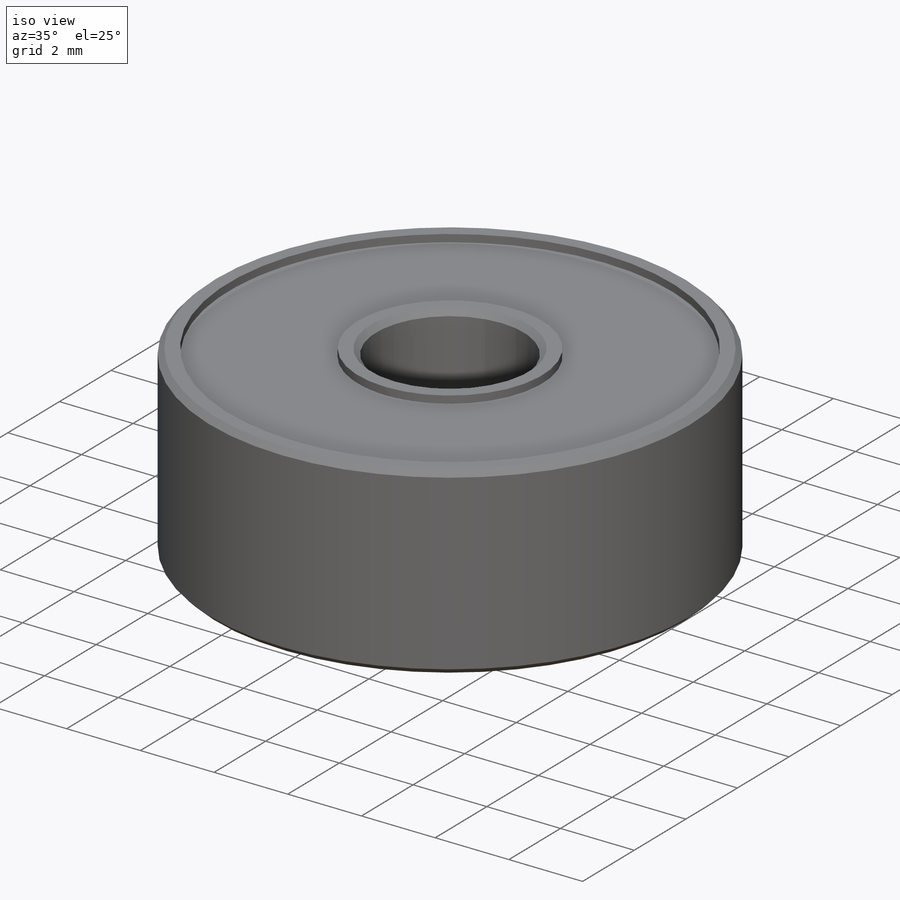
[diagram: iso view]
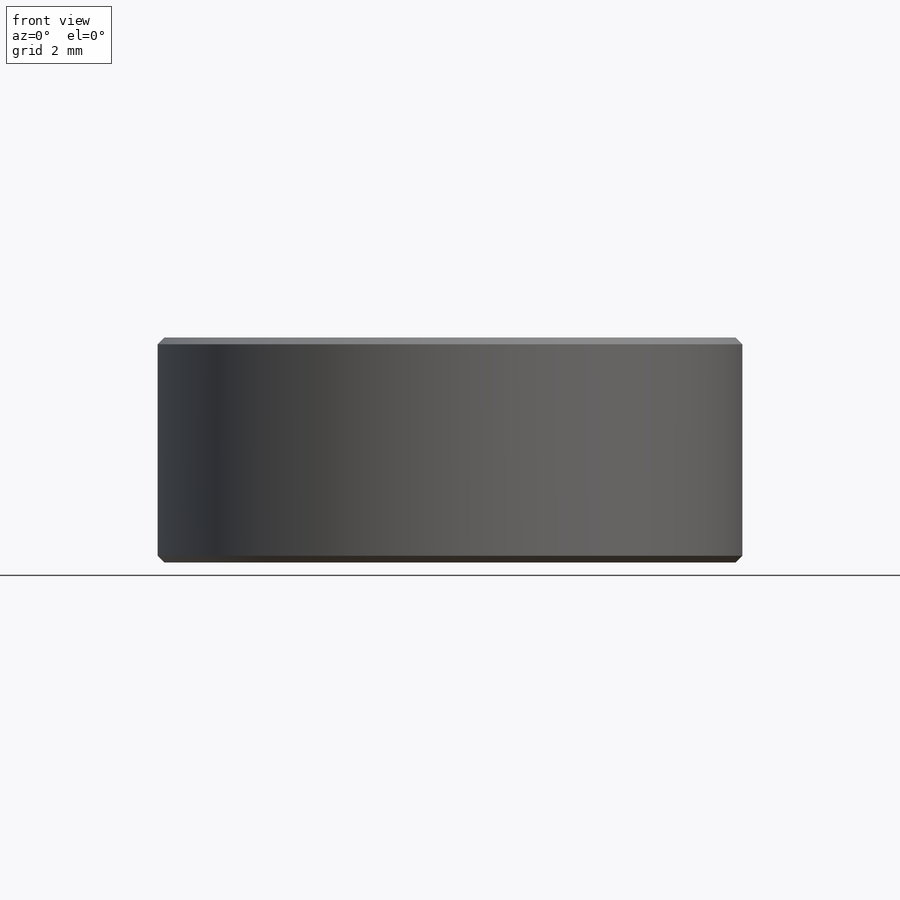
[diagram: front view]
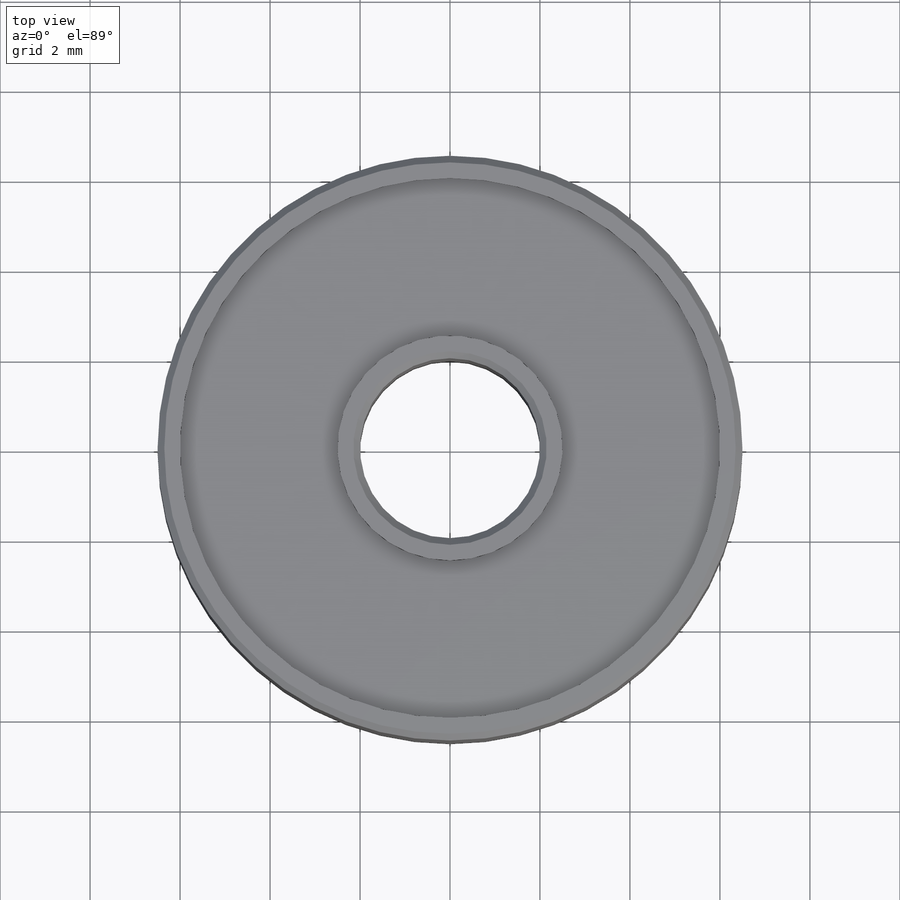
[diagram: top view]
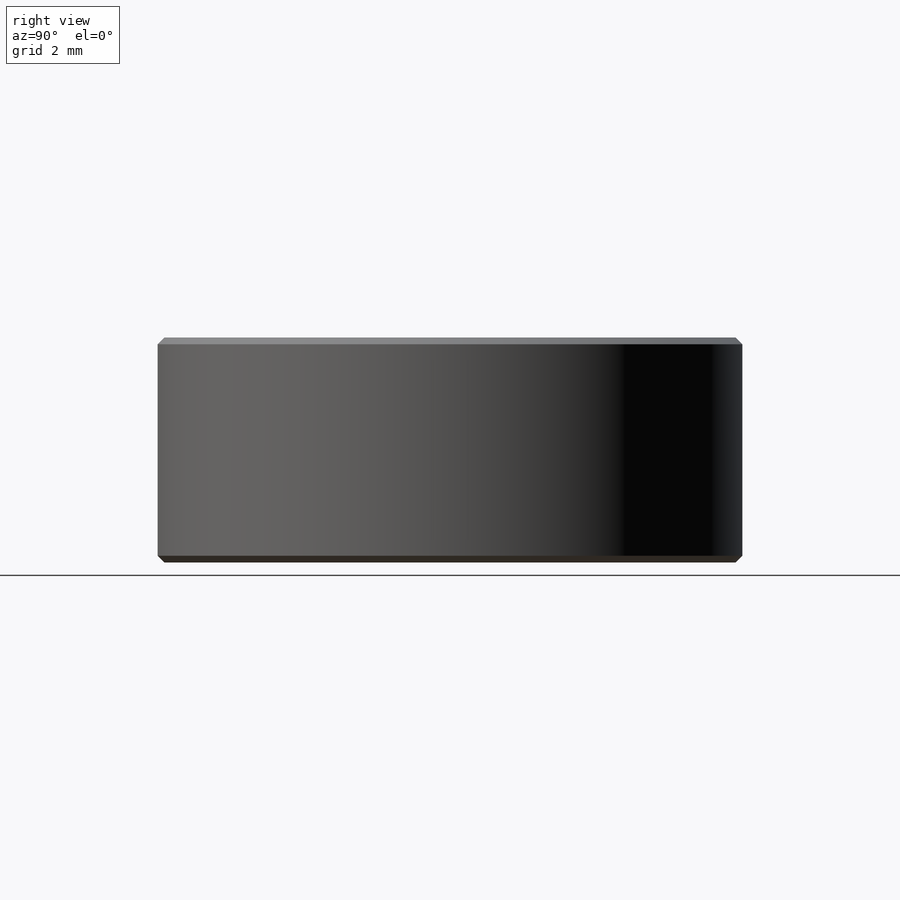
[diagram: right view]
SOLIDWORKS PART (.sldprt)
format: sldprt  version: not decoded by parser v0  size: 256,512 bytes
history: native  units: mm
features: sketch x5, plane x3, extrude x3, cut_extrude x2, material x1, chamfer x1 (+9 scaffold rows collapsed)
feature tree (24):
  scaffold x9  (default folders/planes/origin — collapsed)
  material  "Material <sin especificar>"
  plane  "Alzado"
  plane  "Planta"
  plane  "Vista lateral"
  sketch  "Croquis1"  dims[c1.D1=13.0mm c1.D2=~6.521491mm c1.D3=4.0mm c1.D4=5.0mm c2.D2=0.6mm]
  extrude  "Saliente-Extruir1"  Depth=5mm
  sketch  "Croquis2"  dims[D1=5.0mm D2=12.0mm D3=13.0mm]
  cut_extrude  "Cortar-Extruir1"  Depth=0.7mm
  sketch  "Croquis3"  dims[D1=13.0mm D2=12.2mm D3=5.0mm]
  cut_extrude  "Cortar-Extruir2"  Depth=0.7mm
  chamfer  "Chaflán3"  Distance=0.15mm Angle=45deg
  sketch  "Croquis4"  dims[D1=5.0mm D2=12.0mm]
  extrude  "Saliente-Extruir2"  Depth=0.5mm
  sketch  "Croquis5"  dims[c1.D1=5.0mm c1.D2=12.2mm c2.D1=3.85mm]
  extrude  "Saliente-Extruir3"  Depth=0.5mm
decode coverage: 11 of 11 modeling features carry decoded parameters
note: ~ marks probable driven/reference dimensions
note: suppression state not decoded; provenance and decode notes live in map.json
